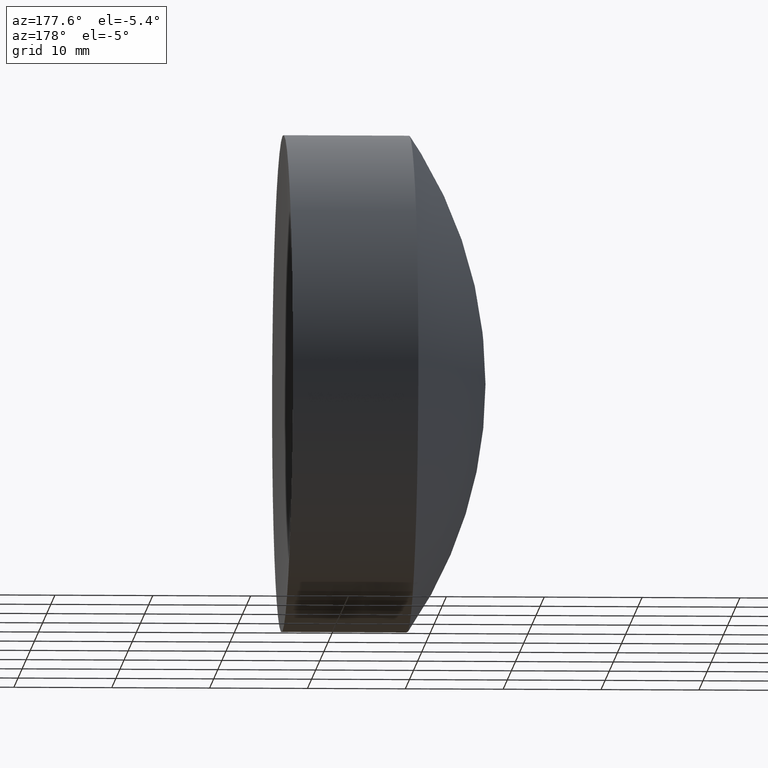
[diagram: clean part render]
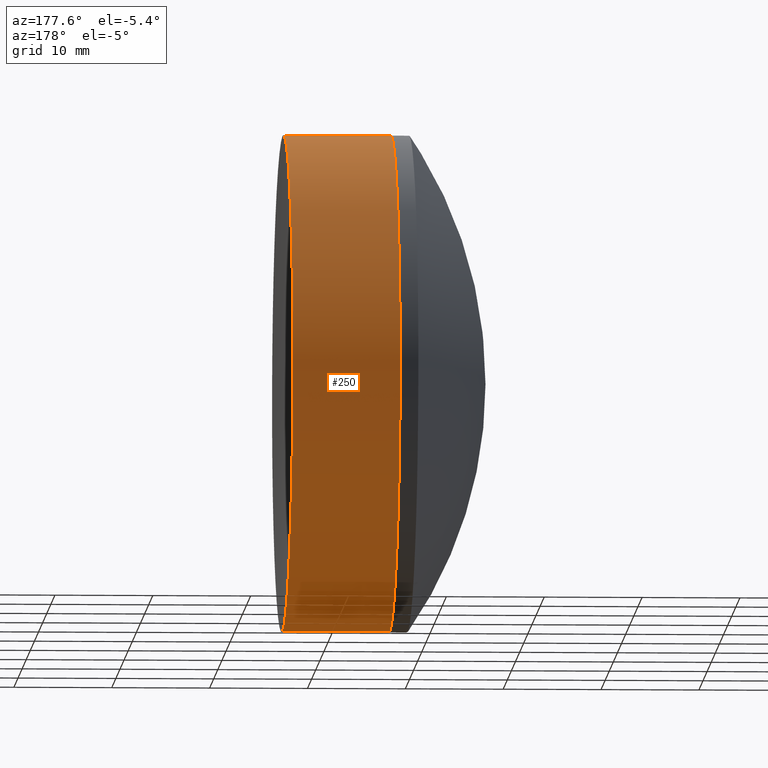
[diagram: same view with one face highlighted and labeled with its STEP entity id]
A machine part, auxiliary view. The second image highlights one B-rep face of the part: STEP entity #250.
In plain terms, the highlighted cylindrical surface (partial cylindrical patch) has radius 25.4 mm, axis along (-1, -0, -0).
Its self-contained STEP definition (entity closure, byte-faithful):
#2 = CARTESIAN_POINT ( 'NONE',  ( 103.6840923325976700, 0.0000000000000000000, 25.39999999999998100 ) ) ;
#45 = VERTEX_POINT ( 'NONE', #2 ) ;
#49 = VERTEX_POINT ( 'NONE', #289 ) ;
#51 = DIRECTION ( 'NONE',  ( 0.0000000000000000000, 0.0000000000000000000, 1.000000000000000000 ) ) ;
#53 = DIRECTION ( 'NONE',  ( 0.0000000000000000000, 0.0000000000000000000, 1.000000000000000000 ) ) ;
#101 = DIRECTION ( 'NONE',  ( 0.0000000000000000000, 0.0000000000000000000, 1.000000000000000000 ) ) ;
#113 = EDGE_LOOP ( 'NONE', ( #309, #132, #173, #296 ) ) ;
#115 = CARTESIAN_POINT ( 'NONE',  ( 103.6840923325976700, 0.0000000000000000000, 0.0000000000000000000 ) ) ;
#126 = AXIS2_PLACEMENT_3D ( 'NONE', #129, #260, #53 ) ;
#129 = CARTESIAN_POINT ( 'NONE',  ( 114.6469018901007200, 0.0000000000000000000, 0.0000000000000000000 ) ) ;
#132 = ORIENTED_EDGE ( 'NONE', *, *, #144, .T. ) ;
#137 = DIRECTION ( 'NONE',  ( -1.000000000000000000, -0.0000000000000000000, -0.0000000000000000000 ) ) ;
#140 = EDGE_CURVE ( 'NONE', #49, #45, #249, .T. ) ;
#142 = DIRECTION ( 'NONE',  ( -1.000000000000000000, -0.0000000000000000000, -0.0000000000000000000 ) ) ;
#144 = EDGE_CURVE ( 'NONE', #330, #184, #247, .T. ) ;
#154 = VECTOR ( 'NONE', #159, 1000.000000000000000 ) ;
#159 = DIRECTION ( 'NONE',  ( -1.000000000000000000, -0.0000000000000000000, -0.0000000000000000000 ) ) ;
#165 = VECTOR ( 'NONE', #207, 1000.000000000000000 ) ;
#172 = AXIS2_PLACEMENT_3D ( 'NONE', #294, #137, #101 ) ;
#173 = ORIENTED_EDGE ( 'NONE', *, *, #210, .F. ) ;
#184 = VERTEX_POINT ( 'NONE', #268 ) ;
#185 = CIRCLE ( 'NONE', #281, 25.39999999999997700 ) ;
#207 = DIRECTION ( 'NONE',  ( -1.000000000000000000, -0.0000000000000000000, -0.0000000000000000000 ) ) ;
#210 = EDGE_CURVE ( 'NONE', #45, #184, #185, .T. ) ;
#235 = FACE_OUTER_BOUND ( 'NONE', #113, .T. ) ;
#241 = CARTESIAN_POINT ( 'NONE',  ( -0.5519199926577972300, 0.0000000000000000000, 25.39999999999997700 ) ) ;
#247 = LINE ( 'NONE', #276, #165 ) ;
#249 = LINE ( 'NONE', #241, #154 ) ;
#250 = ADVANCED_FACE ( 'NONE', ( #235 ), #299, .T. ) ;
#260 = DIRECTION ( 'NONE',  ( -1.000000000000000000, -0.0000000000000000000, -0.0000000000000000000 ) ) ;
#263 = EDGE_CURVE ( 'NONE', #49, #330, #300, .T. ) ;
#268 = CARTESIAN_POINT ( 'NONE',  ( 103.6840923325976700, 3.110602869834274900E-015, -25.39999999999998100 ) ) ;
#276 = CARTESIAN_POINT ( 'NONE',  ( -0.5519199926577972300, 3.110602869834274500E-015, -25.39999999999997700 ) ) ;
#281 = AXIS2_PLACEMENT_3D ( 'NONE', #115, #142, #51 ) ;
#289 = CARTESIAN_POINT ( 'NONE',  ( 114.6469018901007100, -3.110602869834265800E-015, 25.39999999999991000 ) ) ;
#294 = CARTESIAN_POINT ( 'NONE',  ( -0.5519199926577972300, 0.0000000000000000000, 0.0000000000000000000 ) ) ;
#296 = ORIENTED_EDGE ( 'NONE', *, *, #140, .F. ) ;
#299 = CYLINDRICAL_SURFACE ( 'NONE', #172, 25.39999999999997700 ) ;
#300 = CIRCLE ( 'NONE', #126, 25.39999999999997700 ) ;
#309 = ORIENTED_EDGE ( 'NONE', *, *, #263, .T. ) ;
#330 = VERTEX_POINT ( 'NONE', #334 ) ;
#334 = CARTESIAN_POINT ( 'NONE',  ( 114.6469018901007100, 0.0000000000000000000, -25.39999999999991000 ) ) ;